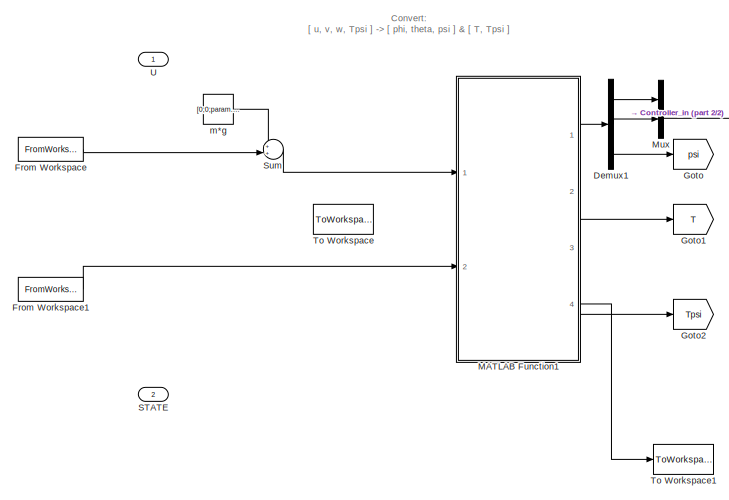
[diagram: root canvas - part 1/2, left side, full height]
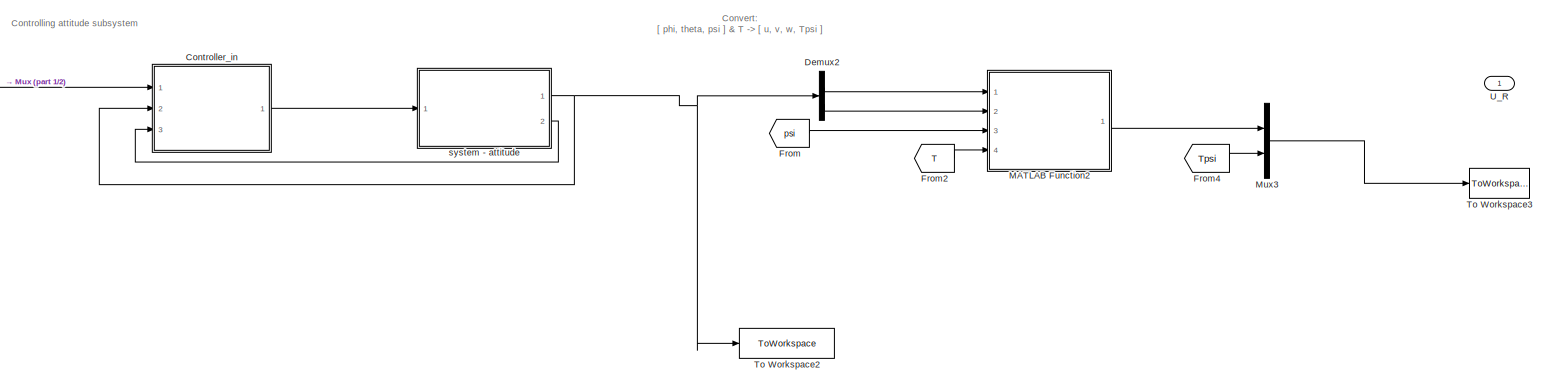
[diagram: root canvas - part 2/2, middle right region]
MODEL slx_b19f42f13a96
KIND model
CONFIG AbsTol = auto
CONFIG FixedStep = auto
CONFIG MaxStep = auto
CONFIG MinStep = auto
CONFIG RelTol = 1e-3
CONFIG SampleTimeConstraint = Unconstrained
CONFIG Solver = ode23
CONFIG SolverMode = Auto
CONFIG SolverName = ode23
CONFIG StartTime = 0.0
CONFIG StopTime = Tfin
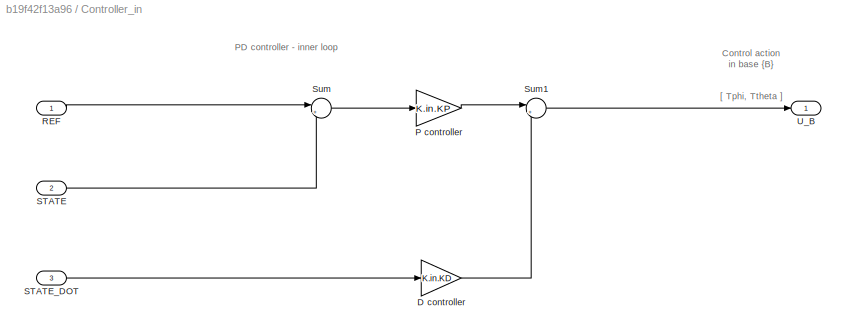
BLOCK [SubSystem] Controller_in 
  Ports = [3, 1]
  RequestExecContextInheritance = off
BLOCK [Gain] Controller_in /D controller
  Gain = K.in.KD
  Multiplication = Matrix(K*u)
  OutDataTypeStr = Inherit: Inherit via internal rule
  ParamDataTypeStr = Inherit: Inherit via internal rule
  SaturateOnIntegerOverflow = off
BLOCK [Gain] Controller_in /P controller
  Gain = K.in.KP
  Multiplication = Matrix(K*u)
  OutDataTypeStr = Inherit: Inherit via internal rule
  ParamDataTypeStr = Inherit: Inherit via internal rule
  SaturateOnIntegerOverflow = off
BLOCK [Inport] Controller_in /REF
  IconDisplay = Port number
BLOCK [Inport] Controller_in /STATE
  IconDisplay = Port number
  Port = 2
BLOCK [Inport] Controller_in /STATE_DOT
  IconDisplay = Port number
  Port = 3
BLOCK [Sum] Controller_in /Sum
  IconShape = round
  InputSameDT = off
  Inputs = |+-
  OutDataTypeStr = Inherit: Inherit via internal rule
  Ports = [2, 1]
  SaturateOnIntegerOverflow = off
BLOCK [Sum] Controller_in /Sum1
  IconShape = round
  InputSameDT = off
  Inputs = |+-
  OutDataTypeStr = Inherit: Inherit via internal rule
  Ports = [2, 1]
  SaturateOnIntegerOverflow = off
BLOCK [Outport] Controller_in /U_B
  IconDisplay = Port number
BLOCK [Demux] Demux1
  DisplayOption = bar
  Outputs = 3
  Ports = [1, 3]
BLOCK [Demux] Demux2
  DisplayOption = bar
  Outputs = 2
  Ports = [1, 2]
BLOCK [From] From
  GotoTag = psi
BLOCK [FromWorkspace] From Workspace
  Interpolate = off
  OutputAfterFinalValue = Setting to zero
  SampleTime = param.hf
  VariableName = u_woutg
  ZeroCross = on
BLOCK [FromWorkspace] From Workspace1
  Interpolate = off
  OutputAfterFinalValue = Setting to zero
  SampleTime = param.hf
  VariableName = out_state
  ZeroCross = on
BLOCK [From] From2
  GotoTag = T
BLOCK [From] From4
  GotoTag = Tpsi
BLOCK [Goto] Goto
  GotoTag = psi
BLOCK [Goto] Goto1
  GotoTag = T
BLOCK [Goto] Goto2
  GotoTag = Tpsi
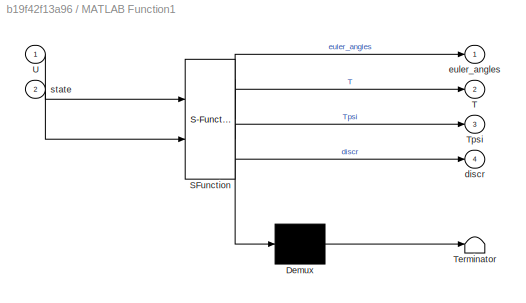
BLOCK [SubSystem] MATLAB Function1
  ErrorFcn = Stateflow.Translate.translate
  PermitHierarchicalResolution = ExplicitOnly
  Ports = [2, 4]
  RequestExecContextInheritance = off
  SFBlockType = MATLAB Function
  TreatAsAtomicUnit = on
BLOCK [Demux] MATLAB Function1/ Demux 
  Outputs = 1
  Ports = [1, 1]
BLOCK [S-Function] MATLAB Function1/ SFunction 
  EnableBusSupport = on
  FunctionName = sf_sfun
  PortCounts = [2 5]
  Ports = [2, 5]
  Tag = Stateflow S-Function trial_main_sys_v1_in 1
BLOCK [Terminator] MATLAB Function1/ Terminator 
BLOCK [Outport] MATLAB Function1/T
  IconDisplay = Port number
  Port = 2
BLOCK [Outport] MATLAB Function1/Tpsi
  IconDisplay = Port number
  Port = 3
BLOCK [Inport] MATLAB Function1/U
  IconDisplay = Port number
BLOCK [Outport] MATLAB Function1/discr
  IconDisplay = Port number
  Port = 4
BLOCK [Outport] MATLAB Function1/euler_angles
  IconDisplay = Port number
BLOCK [Inport] MATLAB Function1/state
  IconDisplay = Port number
  Port = 2
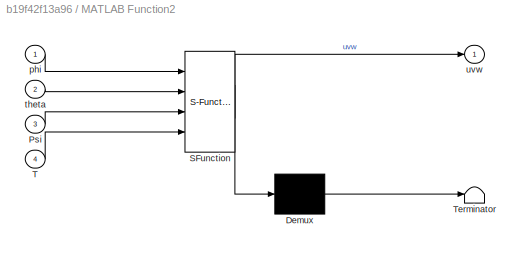
BLOCK [SubSystem] MATLAB Function2
  ErrorFcn = Stateflow.Translate.translate
  PermitHierarchicalResolution = ExplicitOnly
  Ports = [4, 1]
  RequestExecContextInheritance = off
  SFBlockType = MATLAB Function
  TreatAsAtomicUnit = on
BLOCK [Demux] MATLAB Function2/ Demux 
  Outputs = 1
  Ports = [1, 1]
BLOCK [S-Function] MATLAB Function2/ SFunction 
  EnableBusSupport = on
  FunctionName = sf_sfun
  PortCounts = [4 2]
  Ports = [4, 2]
  Tag = Stateflow S-Function trial_main_sys_v1_in 3
BLOCK [Terminator] MATLAB Function2/ Terminator 
BLOCK [Inport] MATLAB Function2/Psi
  IconDisplay = Port number
  Port = 3
BLOCK [Inport] MATLAB Function2/T
  IconDisplay = Port number
  Port = 4
BLOCK [Inport] MATLAB Function2/phi
  IconDisplay = Port number
BLOCK [Inport] MATLAB Function2/theta
  IconDisplay = Port number
  Port = 2
BLOCK [Outport] MATLAB Function2/uvw
  IconDisplay = Port number
BLOCK [Mux] Mux
  DisplayOption = bar
  Inputs = 2
  Ports = [2, 1]
BLOCK [Mux] Mux3
  DisplayOption = bar
  Inputs = 2
  Ports = [2, 1]
BLOCK [Inport] STATE
  IconDisplay = Port number
  Port = 2
BLOCK [Sum] Sum
  IconShape = round
  InputSameDT = off
  Inputs = ++|
  OutDataTypeStr = Inherit: Inherit via internal rule
  Ports = [2, 1]
  SaturateOnIntegerOverflow = off
BLOCK [ToWorkspace] To Workspace
  FixptAsFi = on
  MaxDataPoints = inf
  Ports = [1]
  SampleTime = -1
  Save2DSignal = 3-D array (concatenate along third dimension)
  SaveFormat = Structure With Time
  VariableName = u_inn
BLOCK [ToWorkspace] To Workspace1
  FixptAsFi = on
  MaxDataPoints = inf
  Ports = [1]
  SampleTime = -1
  Save2DSignal = 3-D array (concatenate along third dimension)
  SaveFormat = Structure With Time
  VariableName = casee
BLOCK [ToWorkspace] To Workspace2
  FixptAsFi = on
  MaxDataPoints = inf
  Ports = [1]
  SampleTime = -1
  Save2DSignal = 3-D array (concatenate along third dimension)
  SaveFormat = Structure With Time
  VariableName = casee_angles
BLOCK [ToWorkspace] To Workspace3
  FixptAsFi = on
  MaxDataPoints = inf
  Ports = [1]
  SampleTime = -1
  Save2DSignal = 3-D array (concatenate along third dimension)
  SaveFormat = Structure With Time
  VariableName = u_out_2
BLOCK [Inport] U
  IconDisplay = Port number
BLOCK [Outport] U_R
  IconDisplay = Port number
BLOCK [Constant] m*g
  Value = [0;0;param.m*param.g;0]
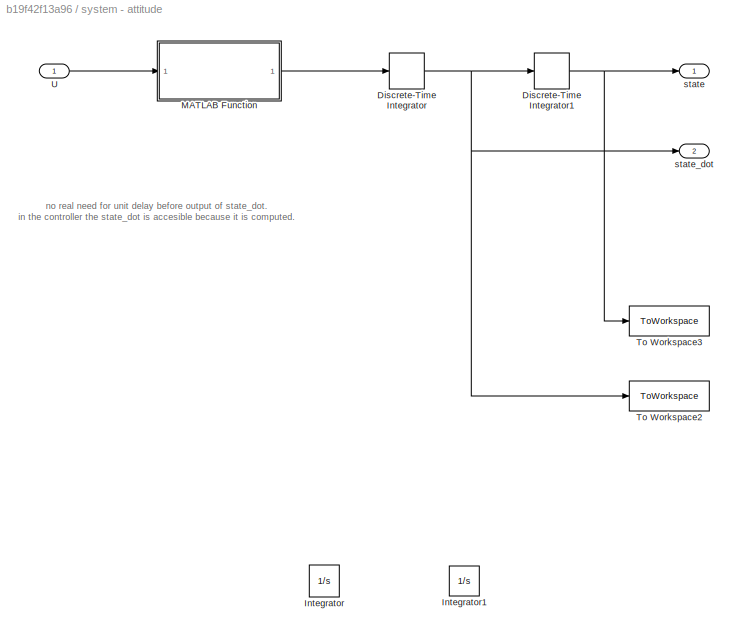
BLOCK [SubSystem] system - attitude
  Ports = [1, 2]
  RequestExecContextInheritance = off
BLOCK [DiscreteIntegrator] system - attitude/Discrete-Time Integrator
  InitialConditionSetting = State (most efficient)
  Ports = [1, 1]
  SampleTime = param.hf
BLOCK [DiscreteIntegrator] system - attitude/Discrete-Time Integrator1
  InitialCondition = init.in
  InitialConditionSetting = State (most efficient)
  Ports = [1, 1]
  SampleTime = param.hf
BLOCK [Integrator] system - attitude/Integrator
  Commented = on
  InitialCondition = [1e-7;1e-7]
  Ports = [1, 1]
  ZeroCross = off
BLOCK [Integrator] system - attitude/Integrator1
  Commented = on
  InitialCondition = init.in
  Ports = [1, 1]
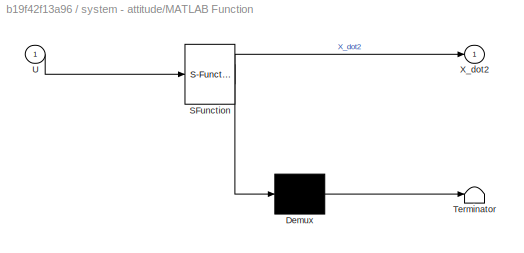
BLOCK [SubSystem] system - attitude/MATLAB Function
  ErrorFcn = Stateflow.Translate.translate
  PermitHierarchicalResolution = ExplicitOnly
  Ports = [1, 1]
  RequestExecContextInheritance = off
  SFBlockType = MATLAB Function
  TreatAsAtomicUnit = on
BLOCK [Demux] system - attitude/MATLAB Function/ Demux 
  Outputs = 1
  Ports = [1, 1]
BLOCK [S-Function] system - attitude/MATLAB Function/ SFunction 
  EnableBusSupport = on
  FunctionName = sf_sfun
  PortCounts = [1 2]
  Ports = [1, 2]
  Tag = Stateflow S-Function trial_main_sys_v1_in 5
BLOCK [Terminator] system - attitude/MATLAB Function/ Terminator 
BLOCK [Inport] system - attitude/MATLAB Function/U
  IconDisplay = Port number
BLOCK [Outport] system - attitude/MATLAB Function/X_dot2
  IconDisplay = Port number
BLOCK [ToWorkspace] system - attitude/To Workspace2
  FixptAsFi = on
  MaxDataPoints = inf
  Ports = [1]
  SampleTime = -1
  Save2DSignal = 3-D array (concatenate along third dimension)
  SaveFormat = Structure With Time
  VariableName = in_state_dot
BLOCK [ToWorkspace] system - attitude/To Workspace3
  FixptAsFi = on
  MaxDataPoints = inf
  Ports = [1]
  SampleTime = -1
  Save2DSignal = 3-D array (concatenate along third dimension)
  SaveFormat = Structure With Time
  VariableName = in_state
BLOCK [Inport] system - attitude/U
  IconDisplay = Port number
BLOCK [Outport] system - attitude/state
  IconDisplay = Port number
BLOCK [Outport] system - attitude/state_dot
  IconDisplay = Port number
  Port = 2
ANNOTATION (root): Controlling attitude subsystem
ANNOTATION (root): Convert: [ phi, theta, psi ] & T -> [ u, v, w, Tpsi ]
ANNOTATION (root): Convert: [ u, v, w, Tpsi ] -> [ phi, theta, psi ] & [ T, Tpsi ]
ANNOTATION Controller_in : Control action in base {B} [ Tphi, Ttheta ]
ANNOTATION Controller_in : PD controller - inner loop
ANNOTATION system - attitude: no real need for unit delay before output of state_dot. in the controller the state_dot is accesible because it is computed.
LINE Controller_in /D controller:1 -> Controller_in /Sum1:2
LINE Controller_in /P controller:1 -> Controller_in /Sum1:1
LINE Controller_in /REF:1 -> Controller_in /Sum:1
LINE Controller_in /STATE:1 -> Controller_in /Sum:2
LINE Controller_in /STATE_DOT:1 -> Controller_in /D controller:1
LINE Controller_in /Sum1:1 -> Controller_in /U_B:1
LINE Controller_in /Sum:1 -> Controller_in /P controller:1
LINE Controller_in :1 -> system - attitude:1
LINE Demux1:1 -> Mux:1
LINE Demux1:2 -> Mux:2
LINE Demux1:3 -> Goto:1
LINE Demux2:1 -> MATLAB Function2:1
LINE Demux2:2 -> MATLAB Function2:2
LINE From Workspace1:1 -> MATLAB Function1:2
LINE From Workspace:1 -> Sum:2
LINE From2:1 -> MATLAB Function2:4
LINE From4:1 -> Mux3:2
LINE From:1 -> MATLAB Function2:3
LINE MATLAB Function1:1 -> Demux1:1
LINE MATLAB Function1:2 -> Goto1:1
LINE MATLAB Function1:3 -> Goto2:1
LINE MATLAB Function1:4 -> To Workspace1:1
LINE MATLAB Function2:1 -> Mux3:1
LINE Mux3:1 -> To Workspace3:1
LINE Mux:1 -> Controller_in :1
LINE Sum:1 -> MATLAB Function1:1
LINE m*g:1 -> Sum:1
NET system - attitude/Discrete-Time Integrator1:1 -> system - attitude/To Workspace3:1, system - attitude/state:1
NET system - attitude/Discrete-Time Integrator:1 -> system - attitude/Discrete-Time Integrator1:1, system - attitude/To Workspace2:1, system - attitude/state_dot:1
LINE system - attitude/MATLAB Function:1 -> system - attitude/Discrete-Time Integrator:1
LINE system - attitude/U:1 -> system - attitude/MATLAB Function:1
NET system - attitude:1 -> Controller_in :2, Demux2:1, To Workspace2:1
LINE system - attitude:2 -> Controller_in :3
note: NET lines group one-source signal fan-out (src -> all destinations, sorted); 1:1 wires keep LINE
CHART MATLAB Function1 states=1 transitions=1
  STATE_LABEL 'eML_blk_kernel()'
  STATE_LABEL 'SCRIPT:\nfunction [euler_angles, T, Tpsi, discr] = fcn1(U, state)\n\n% Mathematical derivation of formulas in XXXX\n\n% Inputs\n    u_abs = U(1);   v_abs = U(2);   w_abs = U(3);\n    Tpsi = U(4);\n    psi = state(4);\n    \n% Torque\nT = sqrt( u_abs^2 + v_abs^2 + w_abs^2 );\n\n% normalization of thrust components\nu = u_abs/(T);\nv = v_abs/(T);\nw = w_abs/(T);\n\n% Euler angles\n\n    % Considering w =! 0 (always tru...<+2264ch>'
CHART MATLAB Function2 states=1 transitions=1
  STATE_LABEL 'eML_blk_kernel()'
  STATE_LABEL 'SCRIPT:\nfunction uvw  = fnc2(phi, theta, Psi, T)\n\n% call RT2uvw\n\n% inputs\n%     phi   = euler(1);\n%     theta = euler(2);\n%     Psi   = euler(3);\n    \n% rotation matrix\n    R = [cos(theta)*cos(Psi),  sin(phi)*sin(theta)*cos(Psi)-cos(phi)*sin(Psi),  cos(phi)*sin(theta)*cos(Psi)+sin(phi)*sin(Psi);\n         cos(theta)*sin(Psi),  sin(phi)*sin(theta)*sin(Psi)+cos(phi)*cos(Psi),  cos(phi)*sin(theta)*sin...<+262ch>'
CHART system - attitude/MATLAB Function states=1 transitions=1
  STATE_LABEL 'eML_blk_kernel()'
  STATE_LABEL 'SCRIPT:\nfunction X_dot2   = sys_in ( U )\n%#codegen\n% parameters\n    Ix = 0.002237568100000;   \n    Iy = 0.002985236000000;\n\nX_dot2 = [ 0; 0];\nX_dot2(1) = U(1) / Ix;\nX_dot2(2) = U(2) / Iy;\n\n\n\n'
